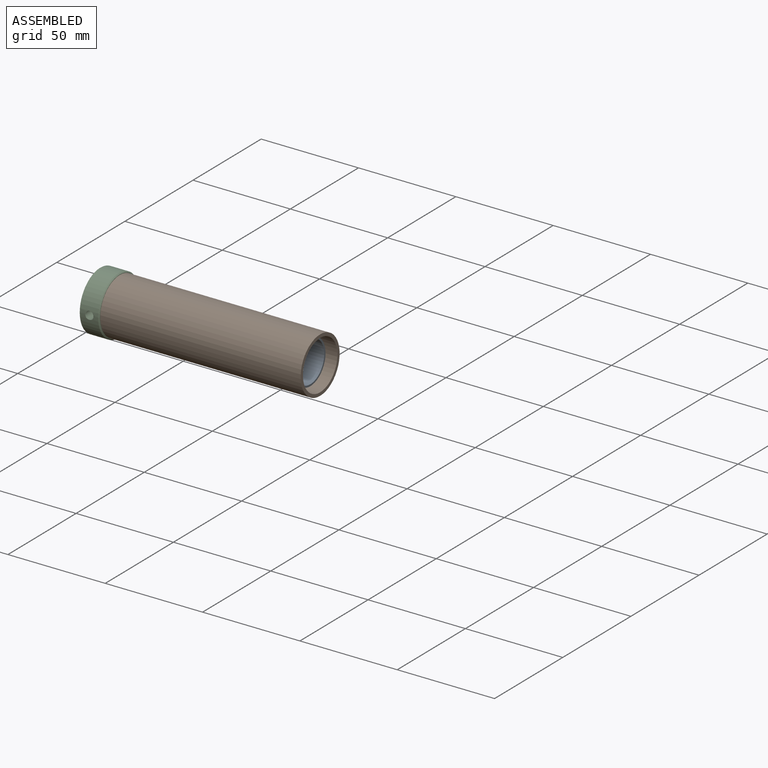
[diagram: assembled view]
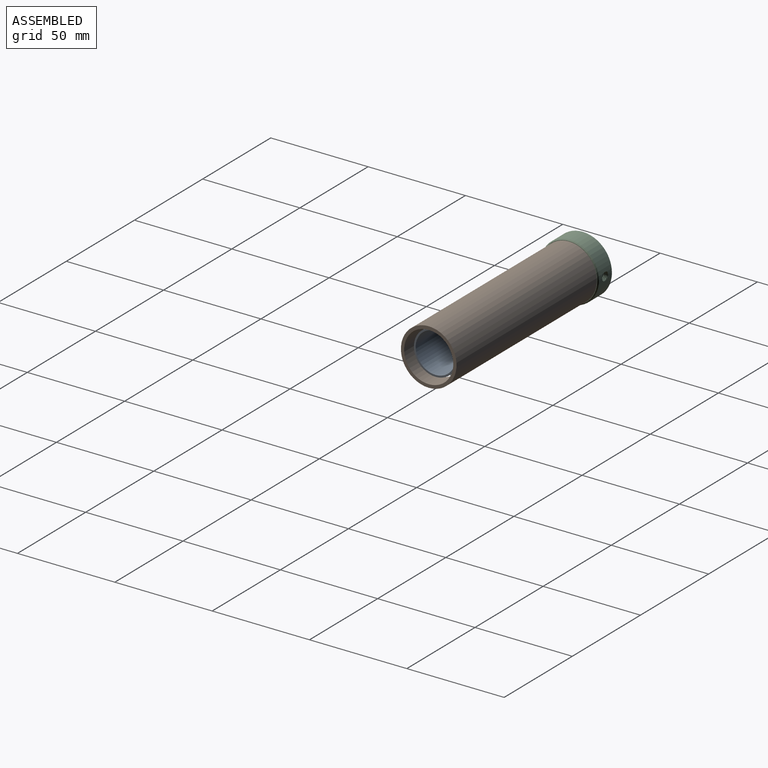
[diagram: assembled view, second angle]
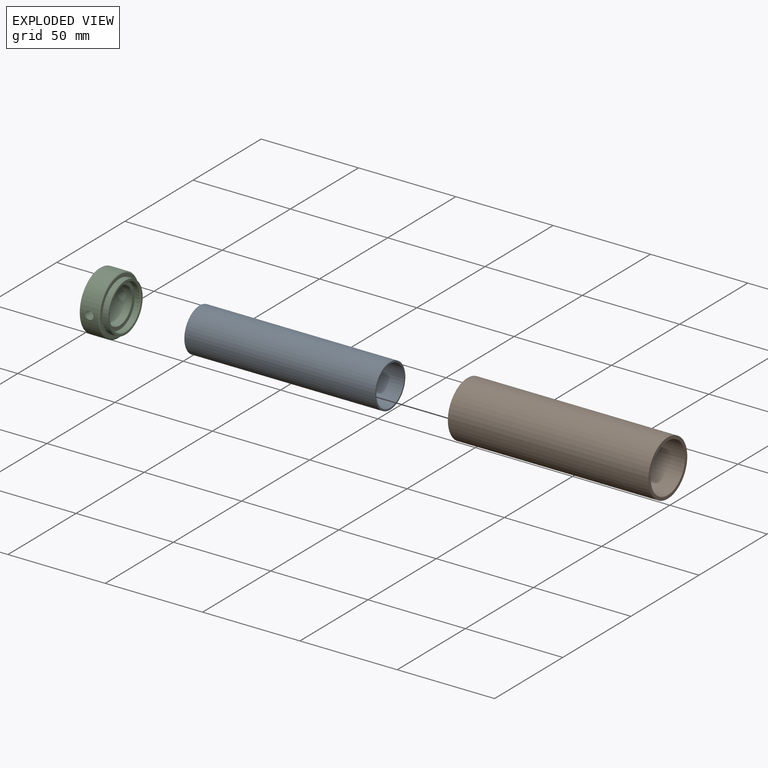
[diagram: exploded view]
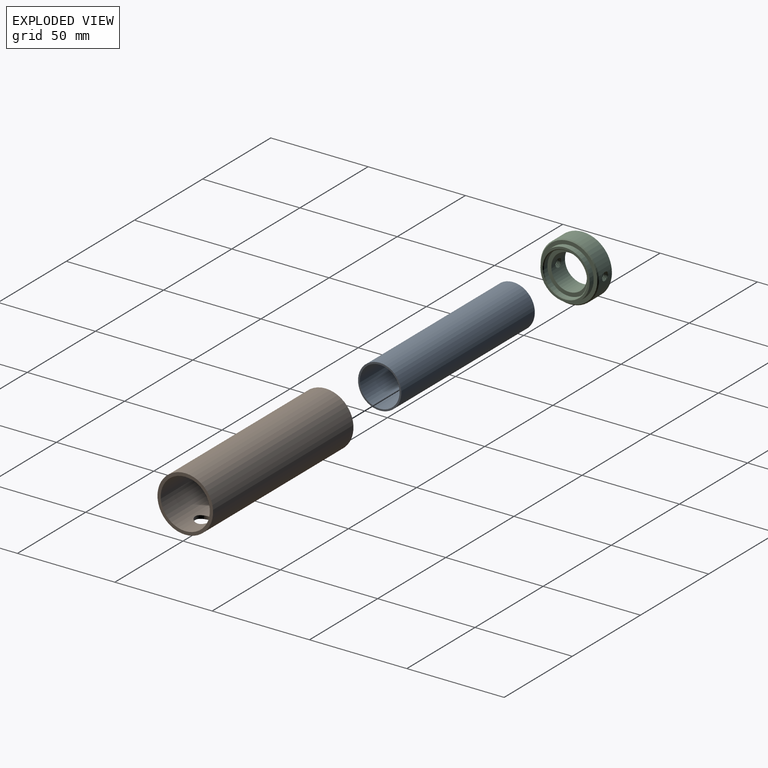
[diagram: exploded view, second angle]
ASSEMBLY  parts=3 mates=4
PART A: 4 faces, bbox 98x22.2x22.2 mm
  f0: cylinder r=10.22mm len=97.99mm, axis (-1,0,0), area 6294.7mm2, adj f2,f3
  f1: cylinder r=11.11mm len=97.99mm, axis (-1,0,0), area 6842.1mm2, adj f2,f3
  f2: plane 22.23x22.23mm, normal (1,0,0), area 59.6mm2, adj f0,f1
  f3: plane 22.23x22.23mm, normal (-1,0,0), area 59.6mm2, adj f0,f1
PART B: 6 faces, bbox 103x28.6x28.6 mm
  f0: cylinder r=12.64mm len=103mm, axis (-1,0,0), area 8064.5mm2, adj f2,f3,f4,f5
  f1: cylinder r=14.29mm len=103mm, axis (-1,0,0), area 9133.4mm2, adj f2,f3,f4,f5
  f2: plane 28.58x28.58mm, normal (1,0,0), area 139.6mm2, adj f0,f1
  f3: plane 28.58x28.58mm, normal (-1,0,0), area 139.6mm2, adj f0,f1
  f4: cylinder r=4.21mm len=8.43mm, axis (0,0,1), area 44.8mm2, adj f0,f1
  f5: cylinder r=4.22mm len=8.43mm, axis (0,0,1), area 44.9mm2, adj f0,f1
PART C: 44 faces, bbox 13.3x30.6x30.1 mm
  f0: plane 25.27x25.27mm, normal (1,0,0), area 86.2mm2, adj f1,f43
  f1: cylinder r=12.64mm len=25.27mm, axis (-1,0,0), area 238.2mm2, adj f0,f2
  f2: plane 29x29mm, normal (1,0,0), area 158.9mm2, adj f1,f3
  f3: cone r=15mm half-angle=45deg, axis (-1,0,0), area 65.5mm2, adj f2,f4
  f4: cylinder r=15mm len=30mm, axis (-1,0,0), area 866.5mm2, adj f3,f5,f13,f14,f15,f16,f17,f18
  f5: bspline ~6.29x5.49mm, area 50mm2, adj f4,f6,f13,f15
  f6: cylinder r=9.15mm len=18.3mm, axis (-1,0,0), area 545.4mm2, adj f5,f7,f8,f9,f10,f11,f13,f14
  f7: bspline ~3.5x2.21mm, area 0mm2, adj f6,f19
  f8: sphere r=3.91mm, area 0.1mm2, adj f6,f17
  f9: sphere r=3.91mm, area 0.1mm2, adj f6,f13
  f10: bspline ~3.5x2.21mm, area 0mm2, adj f6,f15
  f11: plane 22.23x22.23mm, normal (1,0,0), area 124.9mm2, adj f6,f12
  f12: cylinder r=11.11mm len=22.23mm, axis (-1,0,0), area 182.4mm2, adj f11,f43
  f13: cylinder r=2mm len=6.02mm, axis (0,1,0), area 18.7mm2, adj f4,f5,f6,f9,f14
  f14: bspline ~6.29x5.49mm, area 50.3mm2, adj f4,f6,f13,f15
  f15: cylinder r=2.38mm len=6mm, axis (0,-1,0), area 18.7mm2, adj f4,f5,f6,f10,f14
  f16: bspline ~6.29x5.49mm, area 50mm2, adj f4,f6,f17,f19
  f17: cylinder r=2mm len=6.02mm, axis (0,-1,0), area 18.7mm2, adj f4,f6,f8,f16,f18
  f18: bspline ~6.29x5.49mm, area 50.3mm2, adj f4,f6,f17,f19
  f19: cylinder r=2.38mm len=6mm, axis (0,1,0), area 18.7mm2, adj f4,f6,f7,f16,f18
  f20: plane 30.14x30.14mm, normal (-1,0,0), area 427.3mm2, adj f4,f6,f21,f29,f30,f31,f32,f40
  f21: cylinder r=1.77mm len=3.54mm, axis (-1,0,0), area 3.7mm2, adj f20,f22,f29,f31
  f22: plane 0.38x0.27mm, normal (0,-1,0), area 0.1mm2, adj f21,f23,f29,f31
  f23: cylinder r=1.5mm len=3mm, axis (-1,0,0), area 4.1mm2, adj f22,f24,f25,f29,f31
  f24: plane 3x3mm, normal (-1,0,0), area 7.1mm2, adj f23
  f25: cylinder r=1.5mm len=3mm, axis (-1,0,0), area 1.2mm2, adj f23,f26,f29,f31
  f26: cylinder r=1.5mm len=3mm, axis (-1,0,0), area 1.2mm2, adj f25,f27,f29,f31
  f27: cylinder r=1.5mm len=3mm, axis (-1,0,0), area 1.2mm2, adj f26,f28,f29,f31
  f28: cylinder r=1.5mm len=3mm, axis (-1,0,0), area 1.2mm2, adj f27,f29,f30,f31
  f29: bspline ~3.53x3.53mm, area 18mm2, adj f20,f21,f22,f23,f25,f26,f27,f28
  f30: cylinder r=1.5mm len=3mm, axis (-1,0,0), area 0.4mm2, adj f20,f28,f29,f31
  f31: bspline ~4.09x3.54mm, area 16.6mm2, adj f20,f21,f22,f23,f25,f26,f27,f28
  f32: cylinder r=1.77mm len=3.54mm, axis (-1,0,0), area 3.7mm2, adj f20,f33,f40,f42
  f33: plane 0.38x0.27mm, normal (0,1,0), area 0.1mm2, adj f32,f34,f40,f42
  f34: cylinder r=1.5mm len=3mm, axis (-1,0,0), area 4.1mm2, adj f33,f35,f36,f40,f42
  f35: plane 3x3mm, normal (-1,0,0), area 7.1mm2, adj f34
  f36: cylinder r=1.5mm len=3mm, axis (-1,0,0), area 1.2mm2, adj f34,f37,f40,f42
  f37: cylinder r=1.5mm len=3mm, axis (-1,0,0), area 1.2mm2, adj f36,f38,f40,f42
  f38: cylinder r=1.5mm len=3mm, axis (-1,0,0), area 1.2mm2, adj f37,f39,f40,f42
  f39: cylinder r=1.5mm len=3mm, axis (-1,0,0), area 1.2mm2, adj f38,f40,f41,f42
  f40: bspline ~3.53x3.53mm, area 18mm2, adj f20,f32,f33,f34,f36,f37,f38,f39
  f41: cylinder r=1.5mm len=3mm, axis (-1,0,0), area 0.4mm2, adj f20,f39,f40,f42
  f42: bspline ~4.09x3.54mm, area 16.6mm2, adj f20,f32,f33,f34,f36,f37,f38,f39
  f43: cone r=11.5mm half-angle=45deg, axis (1,0,0), area 38.9mm2, adj f0,f12
PLACE A rot(axis=(-1,0,0),153.9deg) t=(17.14,0.31,-8.22)mm
PLACE B t=(17.14,0.31,-8.22)mm
PLACE C t=(7.14,0.31,-8.22)mm fixed
MATE planar C.f1 <-> B.f1  axis (1,0,0) through (17.14,0.31,-8.22)mm
MATE planar C.f3 <-> A.f1  axis (1,0,0) through (17.14,0.31,-8.22)mm
MATE cylindrical C.f12 <-> A.f1  axis (-1,0,0) through (18.45,0.31,-8.22)mm
MATE cylindrical C.f1 <-> B.f0  axis (-1,0,0) through (17.14,0.31,-8.22)mm
